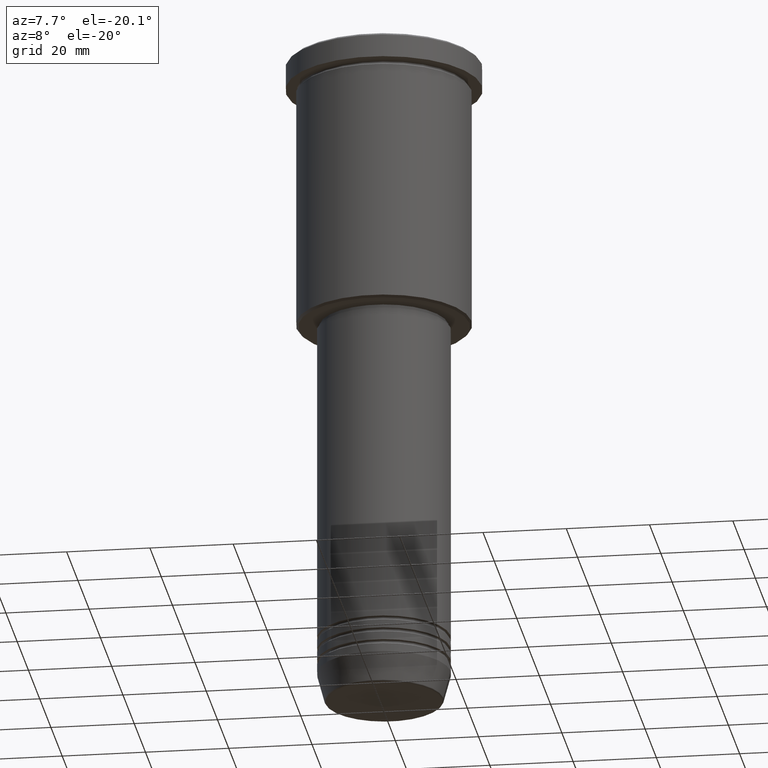
[diagram: clean part render]
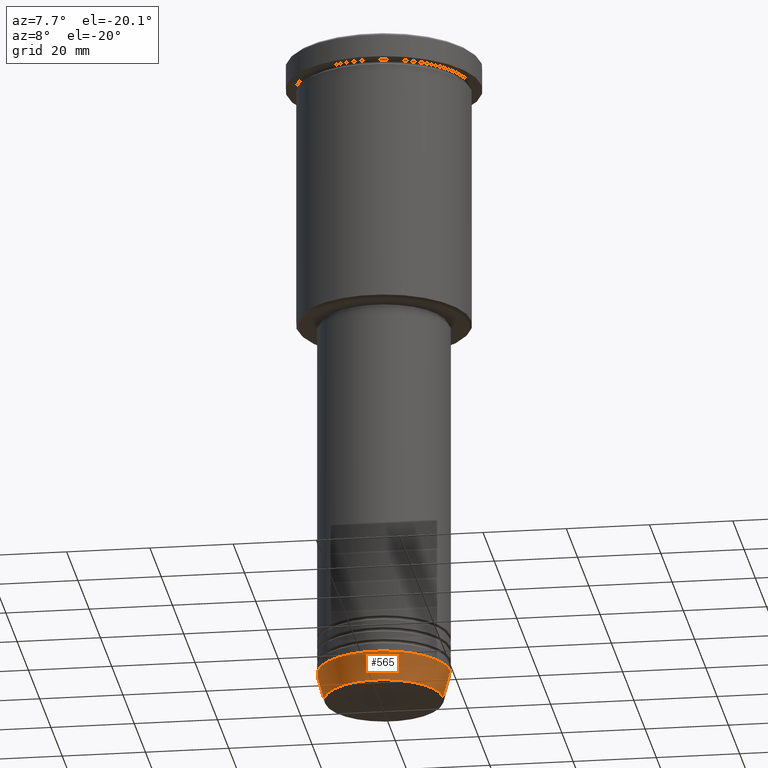
[diagram: same view with one face highlighted and labeled with its STEP entity id]
A machine part, auxiliary view. The second image highlights one B-rep face of the part: STEP entity #565.
In plain terms, the highlighted conical surface has half-angle 15 deg.
Its self-contained STEP definition (entity closure, byte-faithful):
#16 = FACE_OUTER_BOUND ( 'NONE', #100, .T. ) ;
#52 = VERTEX_POINT ( 'NONE', #1151 ) ;
#53 = VECTOR ( 'NONE', #163, 1000.000000000000000 ) ;
#58 = VECTOR ( 'NONE', #528, 1000.000000000000000 ) ;
#70 = EDGE_CURVE ( 'NONE', #52, #736, #469, .T. ) ;
#78 = LINE ( 'NONE', #988, #53 ) ;
#98 = CONICAL_SURFACE ( 'NONE', #509, 16.00000000000000000, 0.2617993877991500740 ) ;
#100 = EDGE_LOOP ( 'NONE', ( #1126, #643, #714, #390 ) ) ;
#149 = EDGE_CURVE ( 'NONE', #736, #728, #78, .T. ) ;
#163 = DIRECTION ( 'NONE',  ( 0.2588190451025213501, 0.000000000000000000, 0.9659258262890680902 ) ) ;
#164 = CARTESIAN_POINT ( 'NONE',  ( 14.22365507213719660, 0.000000000000000000, -160.6294095225512422 ) ) ;
#166 = AXIS2_PLACEMENT_3D ( 'NONE', #1158, #1134, #303 ) ;
#174 = DIRECTION ( 'NONE',  ( 1.000000000000000000, 0.000000000000000000, 0.000000000000000000 ) ) ;
#210 = CARTESIAN_POINT ( 'NONE',  ( -16.00000000000000000, 1.959434878635765131E-15, -154.0000000000000000 ) ) ;
#254 = DIRECTION ( 'NONE',  ( -0.000000000000000000, -0.000000000000000000, 1.000000000000000000 ) ) ;
#303 = DIRECTION ( 'NONE',  ( 1.000000000000000000, 0.000000000000000000, 0.000000000000000000 ) ) ;
#309 = AXIS2_PLACEMENT_3D ( 'NONE', #984, #254, #427 ) ;
#388 = CIRCLE ( 'NONE', #309, 16.00000000000000000 ) ;
#390 = ORIENTED_EDGE ( 'NONE', *, *, #586, .F. ) ;
#427 = DIRECTION ( 'NONE',  ( 1.000000000000000000, 0.000000000000000000, 0.000000000000000000 ) ) ;
#428 = VERTEX_POINT ( 'NONE', #210 ) ;
#469 = CIRCLE ( 'NONE', #166, 14.22365507213719660 ) ;
#509 = AXIS2_PLACEMENT_3D ( 'NONE', #1024, #1039, #174 ) ;
#528 = DIRECTION ( 'NONE',  ( -0.2588190451025213501, 3.169619151431772337E-17, 0.9659258262890680902 ) ) ;
#565 = ADVANCED_FACE ( 'NONE', ( #16 ), #98, .T. ) ;
#586 = EDGE_CURVE ( 'NONE', #428, #728, #388, .T. ) ;
#607 = CARTESIAN_POINT ( 'NONE',  ( -16.00000000000000000, 1.959434878635765131E-15, -154.0000000000000000 ) ) ;
#643 = ORIENTED_EDGE ( 'NONE', *, *, #70, .T. ) ;
#714 = ORIENTED_EDGE ( 'NONE', *, *, #149, .T. ) ;
#728 = VERTEX_POINT ( 'NONE', #983 ) ;
#736 = VERTEX_POINT ( 'NONE', #164 ) ;
#923 = EDGE_CURVE ( 'NONE', #52, #428, #1172, .T. ) ;
#983 = CARTESIAN_POINT ( 'NONE',  ( 16.00000000000000000, 0.000000000000000000, -154.0000000000000000 ) ) ;
#984 = CARTESIAN_POINT ( 'NONE',  ( 0.000000000000000000, 0.000000000000000000, -154.0000000000000000 ) ) ;
#988 = CARTESIAN_POINT ( 'NONE',  ( 16.00000000000000000, 0.000000000000000000, -154.0000000000000000 ) ) ;
#1024 = CARTESIAN_POINT ( 'NONE',  ( 0.000000000000000000, 0.000000000000000000, -154.0000000000000000 ) ) ;
#1039 = DIRECTION ( 'NONE',  ( -0.000000000000000000, -0.000000000000000000, 1.000000000000000000 ) ) ;
#1126 = ORIENTED_EDGE ( 'NONE', *, *, #923, .F. ) ;
#1134 = DIRECTION ( 'NONE',  ( -0.000000000000000000, -0.000000000000000000, 1.000000000000000000 ) ) ;
#1151 = CARTESIAN_POINT ( 'NONE',  ( -14.22365507213719660, 1.850665122131324126E-15, -160.6294095225512422 ) ) ;
#1158 = CARTESIAN_POINT ( 'NONE',  ( 0.000000000000000000, 0.000000000000000000, -160.6294095225512422 ) ) ;
#1172 = LINE ( 'NONE', #607, #58 ) ;